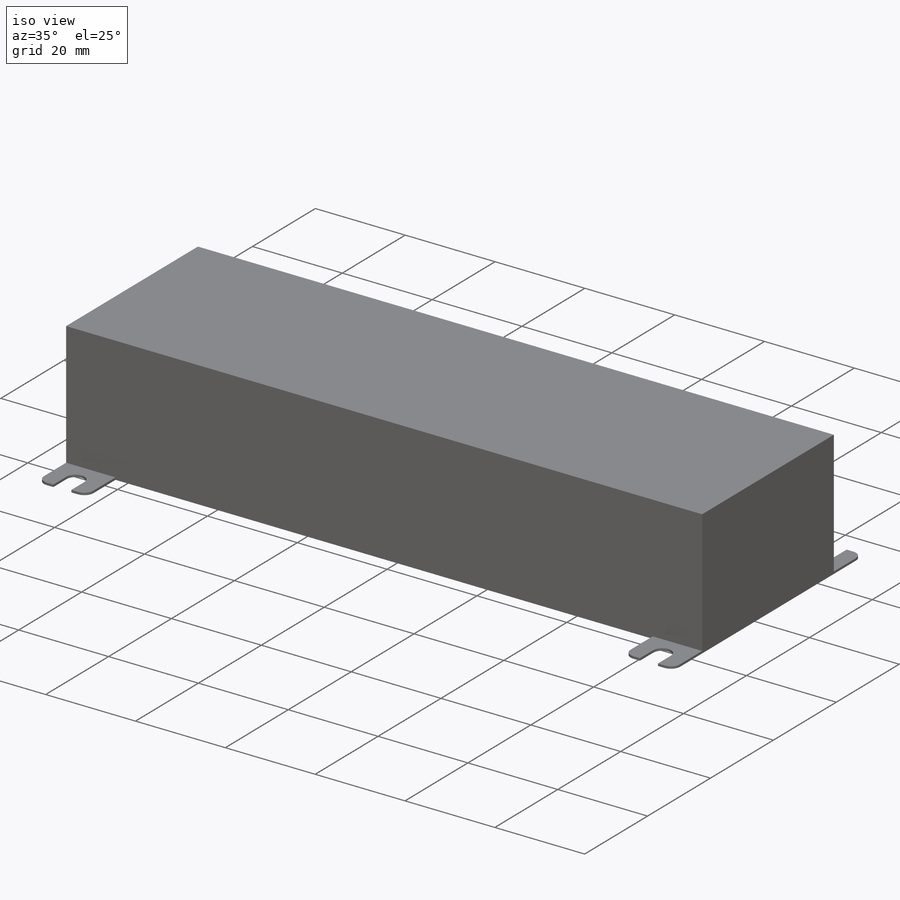
[diagram: iso view]
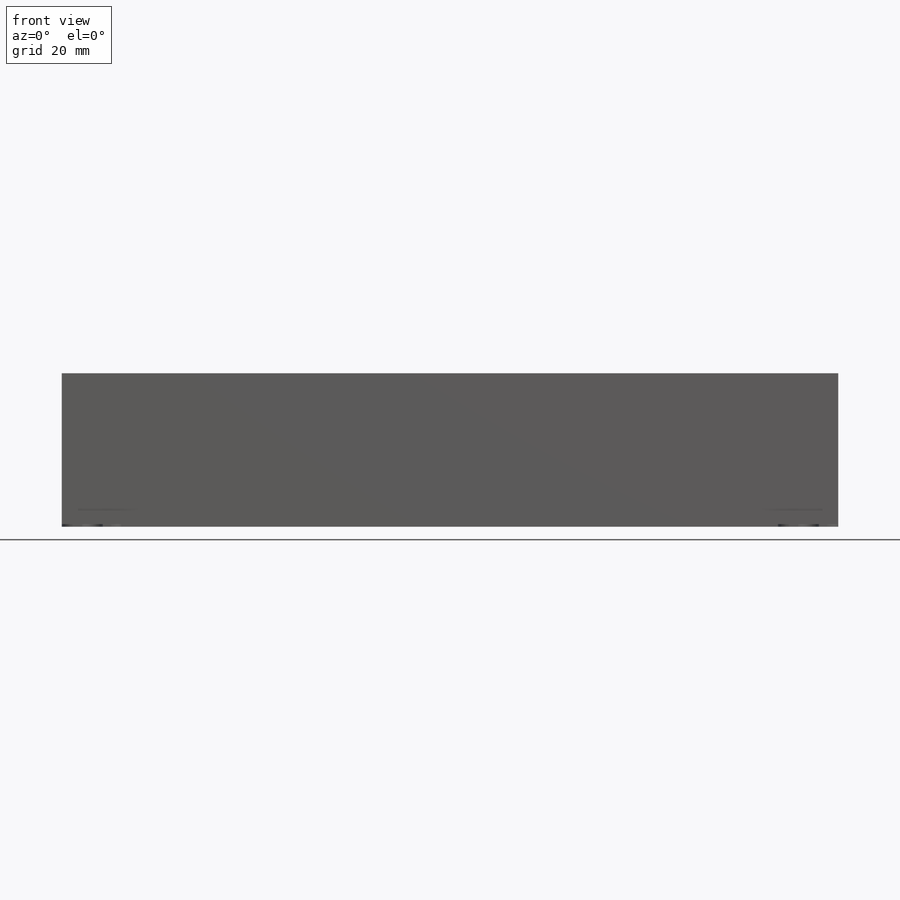
[diagram: front view]
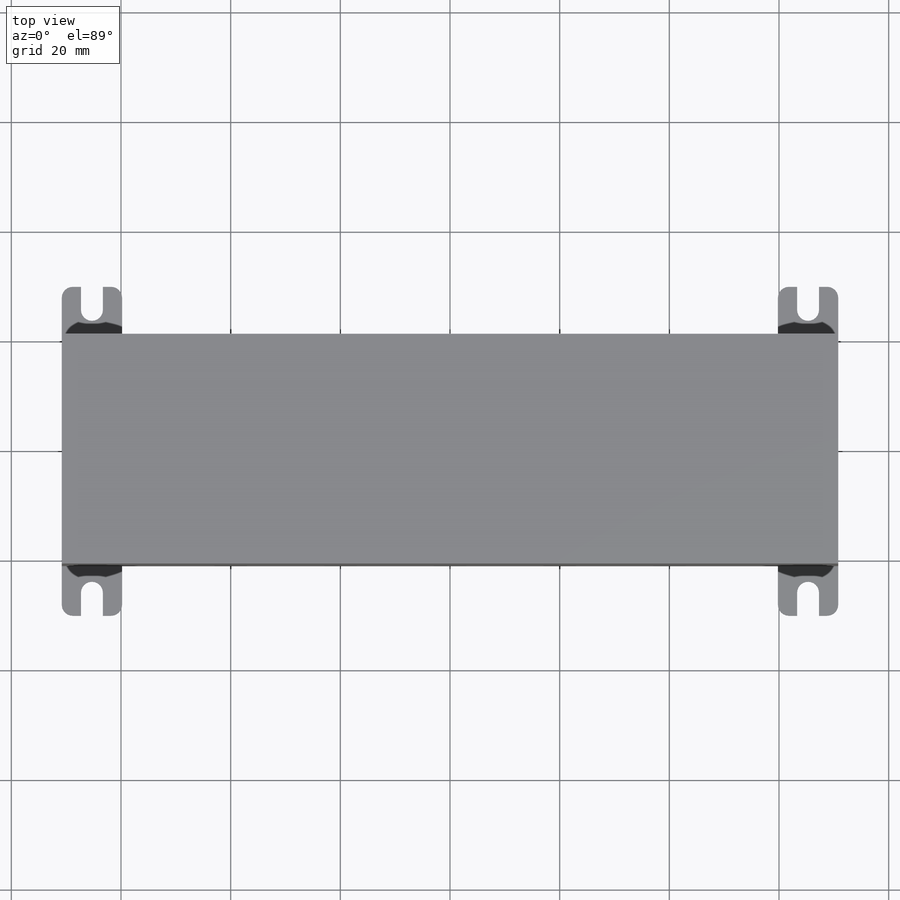
[diagram: top view]
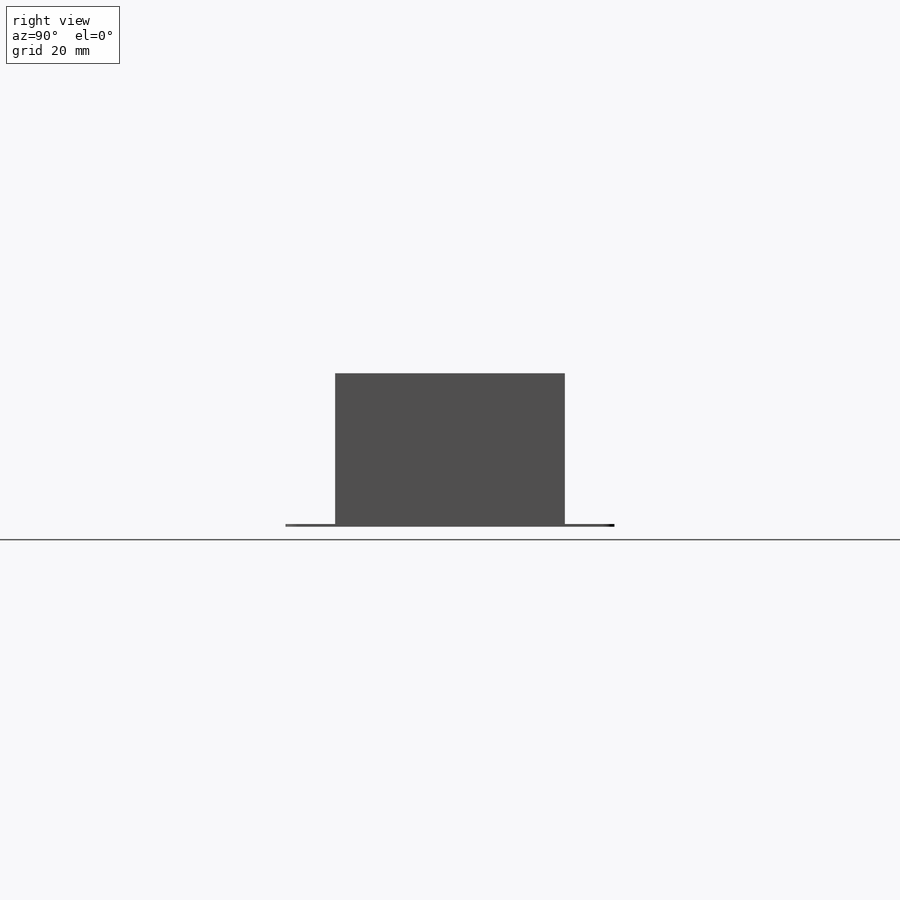
[diagram: right view]
SOLIDWORKS PART (.sldprt)
format: sldprt  version: not decoded by parser v0  size: 184,320 bytes
history: native  units: mm
features: sketch x3, extrude x2, mirror x2, material x1, fillet x1, cut_extrude x1 (+11 scaffold rows collapsed)
feature tree (21):
  scaffold x11  (default folders/planes/origin — collapsed)
  material  "Material <not specified>"
  sketch  "Sketch1"  dims[D1=141.6mm D2=41.9mm]
  extrude  "Boss-Extrude1"  Depth=28mm
  sketch  "Sketch2"  dims[D1=11.0mm D2=0.5mm]
  extrude  "Boss-Extrude2"  Depth=9.05mm
  fillet  "Fillet1"  Radius=2mm
  sketch  "Sketch3"  dims[D1=4.2mm D2=4.0mm]
  cut_extrude  "Cut-Extrude1"  Depth=9.05mm
  mirror  "Mirror1"
  mirror  "Mirror2"
decode coverage: 7 of 9 modeling features carry decoded parameters
note: suppression state not decoded; provenance and decode notes live in map.json
